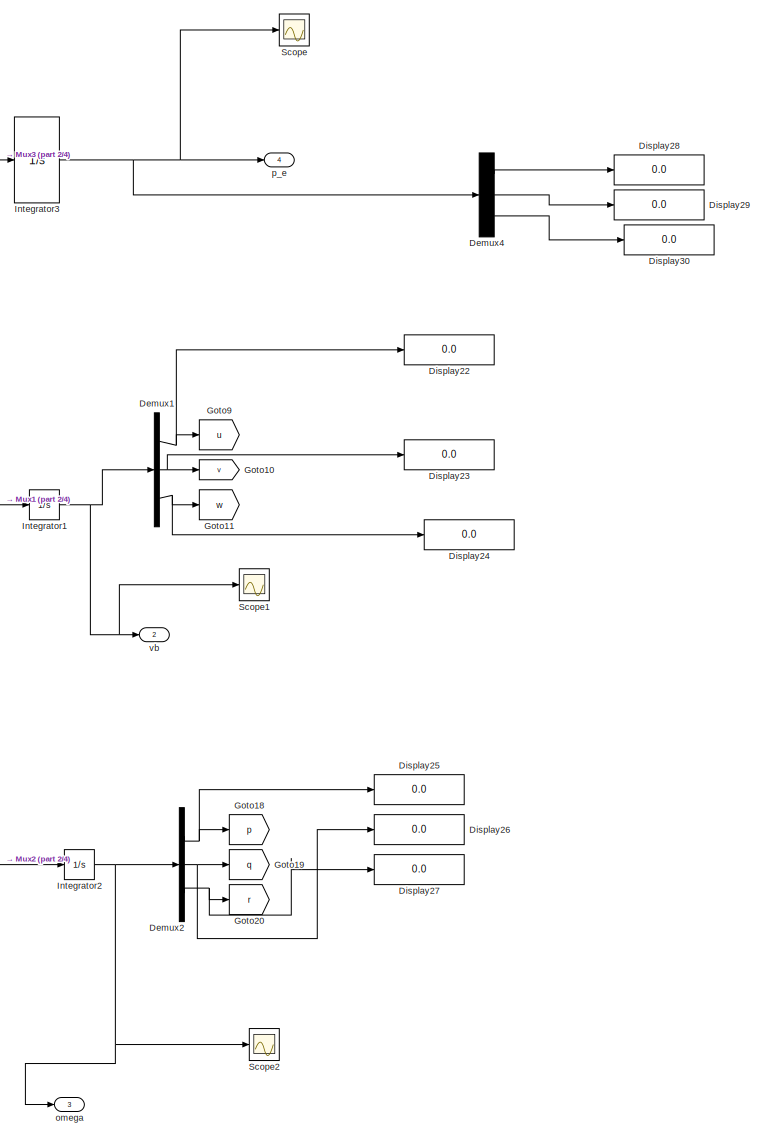
[diagram: root canvas - part 1/4, right side, full height]
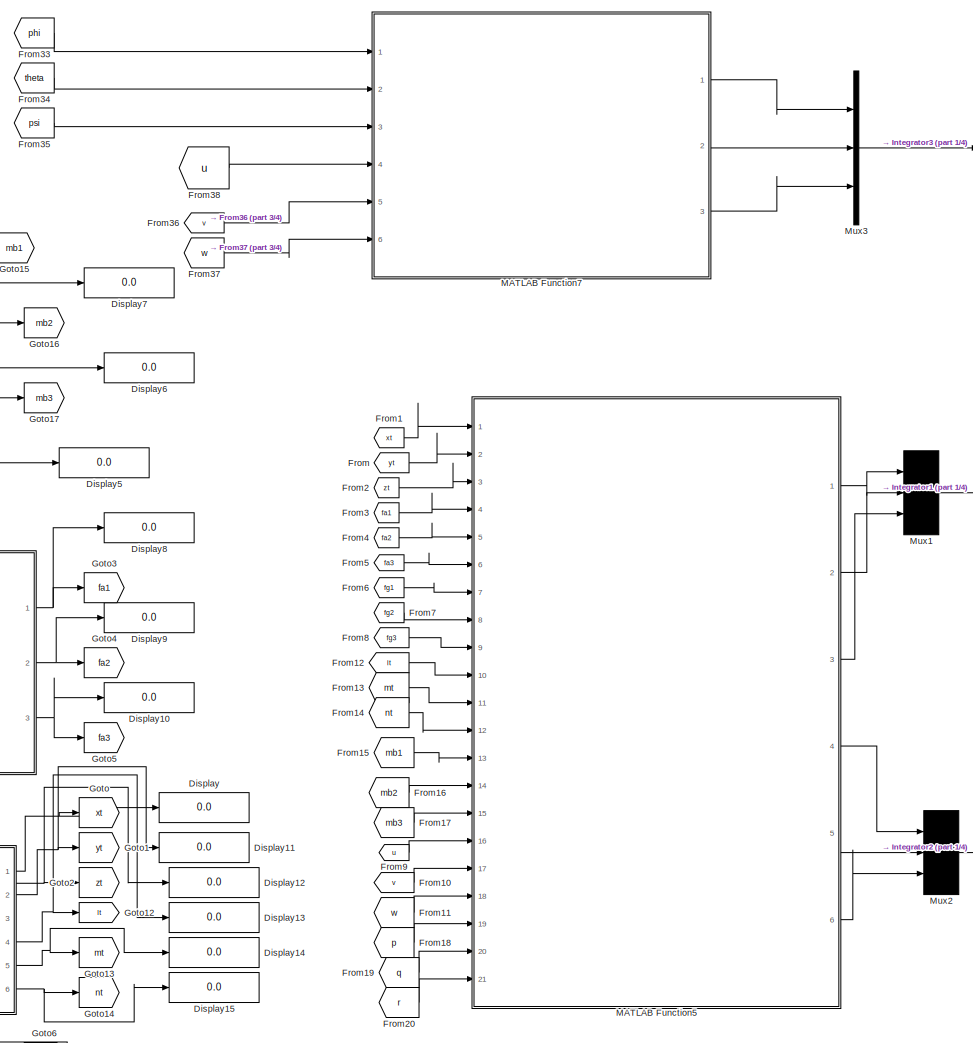
[diagram: root canvas - part 2/4, center side, full height]
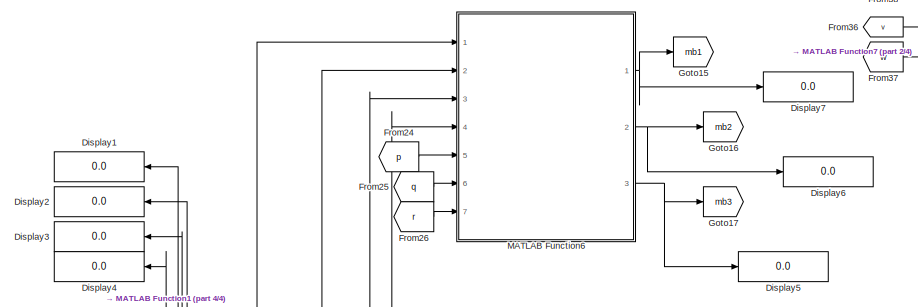
[diagram: root canvas - part 3/4, top left region]
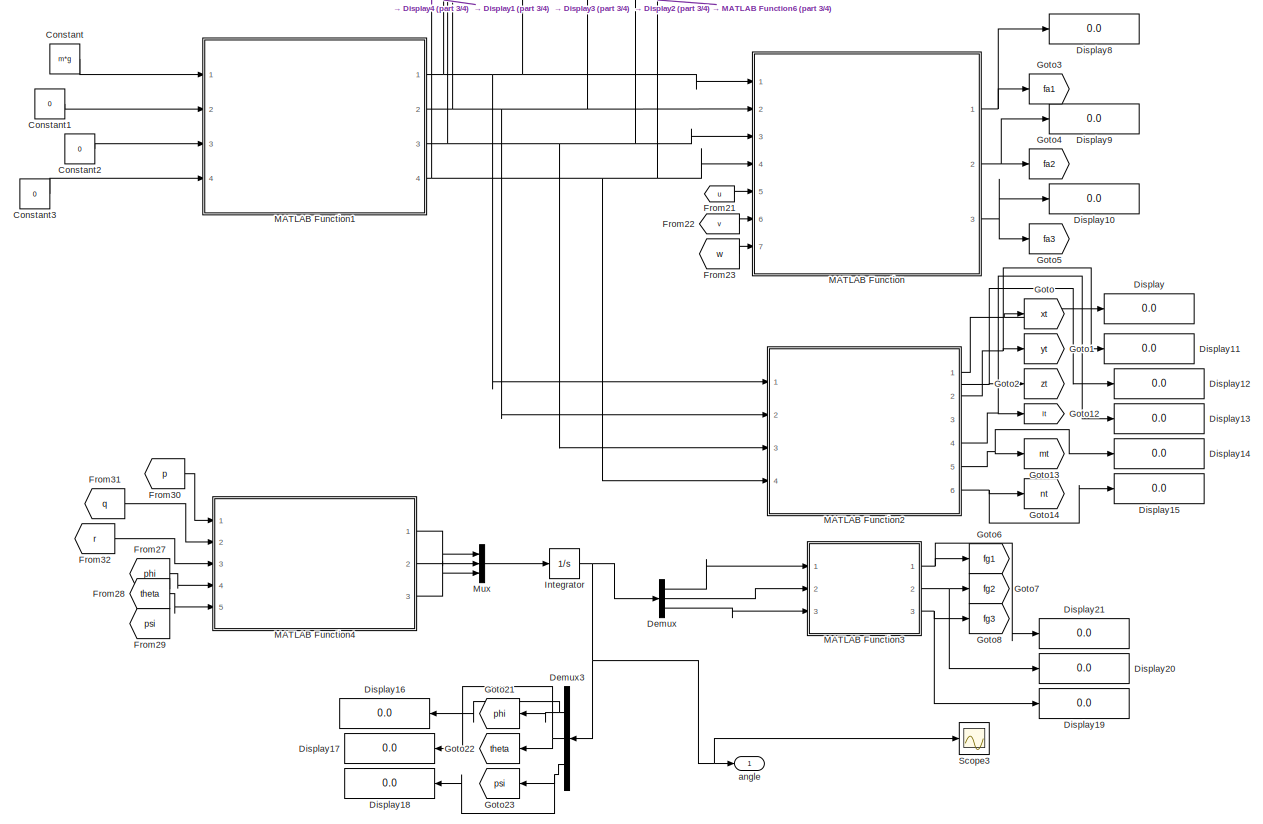
[diagram: root canvas - part 4/4, bottom left region]
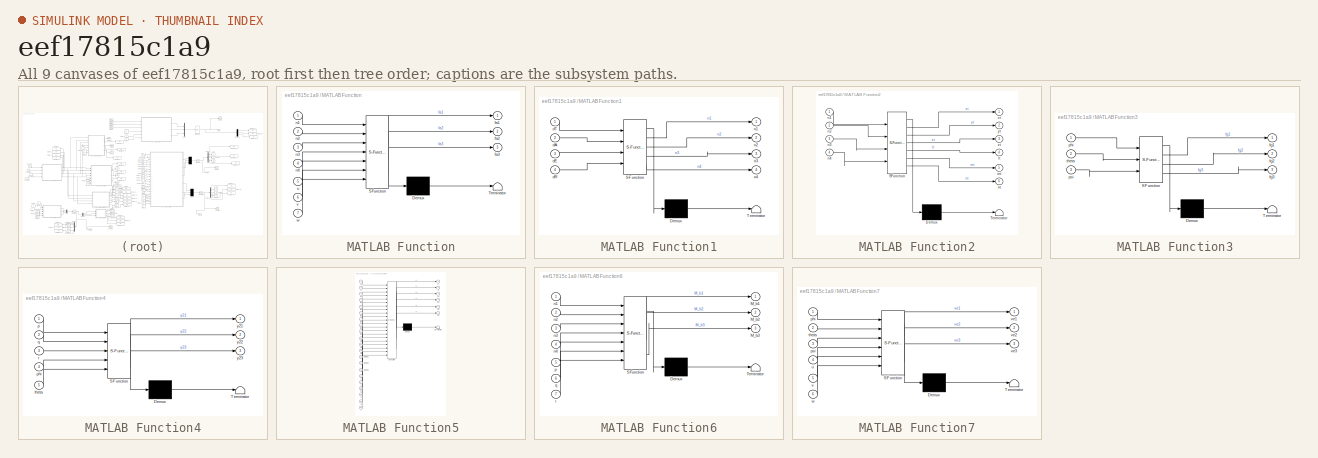
[diagram: thumbnail index - all 9 canvases of the model, root first then tree order]
MODEL slx_eef17815c1a9
KIND model
CONFIG AbsTol = auto
CONFIG EnableMultiTasking = off
CONFIG FixedStep = auto
CONFIG MaxStep = auto
CONFIG MinStep = auto
CONFIG RelTol = 1e-3
CONFIG SampleTimeConstraint = Unconstrained
CONFIG SolverName = VariableStepAuto
CONFIG StartTime = 0.0
CONFIG StopTime = 10.0
BLOCK [Constant] Constant
  Value = m*g
BLOCK [Constant] Constant1
  Value = 0
BLOCK [Constant] Constant2
  Value = 0
BLOCK [Constant] Constant3
  Value = 0
BLOCK [Demux] Demux
  Outputs = 3
  Ports = [1, 3]
BLOCK [Demux] Demux1
  Outputs = 3
  Ports = [1, 3]
BLOCK [Demux] Demux2
  Outputs = 3
  Ports = [1, 3]
BLOCK [Demux] Demux3
  Outputs = 3
  Ports = [1, 3]
BLOCK [Demux] Demux4
  Outputs = 3
  Ports = [1, 3]
BLOCK [Display] Display
  Decimation = 1
  Ports = [1]
BLOCK [Display] Display1
  Decimation = 1
  Ports = [1]
BLOCK [Display] Display10
  Decimation = 1
  Ports = [1]
BLOCK [Display] Display11
  Decimation = 1
  Ports = [1]
BLOCK [Display] Display12
  Decimation = 1
  Ports = [1]
BLOCK [Display] Display13
  Decimation = 1
  Ports = [1]
BLOCK [Display] Display14
  Decimation = 1
  Ports = [1]
BLOCK [Display] Display15
  Decimation = 1
  Ports = [1]
BLOCK [Display] Display16
  Decimation = 1
  Ports = [1]
BLOCK [Display] Display17
  Decimation = 1
  Ports = [1]
BLOCK [Display] Display18
  Decimation = 1
  Ports = [1]
BLOCK [Display] Display19
  Decimation = 1
  Ports = [1]
BLOCK [Display] Display2
  Decimation = 1
  Ports = [1]
BLOCK [Display] Display20
  Decimation = 1
  Ports = [1]
BLOCK [Display] Display21
  Decimation = 1
  Ports = [1]
BLOCK [Display] Display22
  Decimation = 1
  Ports = [1]
BLOCK [Display] Display23
  Decimation = 1
  Ports = [1]
BLOCK [Display] Display24
  Decimation = 1
  Ports = [1]
BLOCK [Display] Display25
  Decimation = 1
  Ports = [1]
BLOCK [Display] Display26
  Decimation = 1
  Ports = [1]
BLOCK [Display] Display27
  Decimation = 1
  Ports = [1]
BLOCK [Display] Display28
  Decimation = 1
  Ports = [1]
BLOCK [Display] Display29
  Decimation = 1
  Ports = [1]
BLOCK [Display] Display3
  Decimation = 1
  Ports = [1]
BLOCK [Display] Display30
  Decimation = 1
  Ports = [1]
BLOCK [Display] Display4
  Decimation = 1
  Ports = [1]
BLOCK [Display] Display5
  Decimation = 1
  Ports = [1]
BLOCK [Display] Display6
  Decimation = 1
  Ports = [1]
BLOCK [Display] Display7
  Decimation = 1
  Ports = [1]
BLOCK [Display] Display8
  Decimation = 1
  Ports = [1]
BLOCK [Display] Display9
  Decimation = 1
  Ports = [1]
BLOCK [From] From
  GotoTag = yt
BLOCK [From] From1
  GotoTag = xt
BLOCK [From] From10
  GotoTag = v
BLOCK [From] From11
  GotoTag = w
BLOCK [From] From12
  GotoTag = lt
BLOCK [From] From13
  GotoTag = mt
BLOCK [From] From14
  GotoTag = nt
BLOCK [From] From15
  GotoTag = mb1
BLOCK [From] From16
  GotoTag = mb2
BLOCK [From] From17
  GotoTag = mb3
BLOCK [From] From18
  GotoTag = p
BLOCK [From] From19
  GotoTag = q
BLOCK [From] From2
  GotoTag = zt
BLOCK [From] From20
  GotoTag = r
BLOCK [From] From21
  GotoTag = u
BLOCK [From] From22
  GotoTag = v
BLOCK [From] From23
  GotoTag = w
BLOCK [From] From24
  GotoTag = p
BLOCK [From] From25
  GotoTag = q
BLOCK [From] From26
  GotoTag = r
BLOCK [From] From27
  GotoTag = phi
BLOCK [From] From28
  GotoTag = theta
BLOCK [From] From29
  GotoTag = psi
BLOCK [From] From3
  GotoTag = fa1
BLOCK [From] From30
  GotoTag = p
BLOCK [From] From31
  GotoTag = q
BLOCK [From] From32
  GotoTag = r
BLOCK [From] From33
  GotoTag = phi
BLOCK [From] From34
  GotoTag = theta
BLOCK [From] From35
  GotoTag = psi
BLOCK [From] From36
  GotoTag = v
BLOCK [From] From37
  GotoTag = w
BLOCK [From] From38
  GotoTag = u
BLOCK [From] From4
  GotoTag = fa2
BLOCK [From] From5
  GotoTag = fa3
BLOCK [From] From6
  GotoTag = fg1
BLOCK [From] From7
  GotoTag = fg2
BLOCK [From] From8
  GotoTag = fg3
BLOCK [From] From9
  GotoTag = u
BLOCK [Goto] Goto
  GotoTag = xt
BLOCK [Goto] Goto1
  GotoTag = yt
BLOCK [Goto] Goto10
  GotoTag = v
BLOCK [Goto] Goto11
  GotoTag = w
BLOCK [Goto] Goto12
  GotoTag = lt
BLOCK [Goto] Goto13
  GotoTag = mt
BLOCK [Goto] Goto14
  GotoTag = nt
BLOCK [Goto] Goto15
  GotoTag = mb1
BLOCK [Goto] Goto16
  GotoTag = mb2
BLOCK [Goto] Goto17
  GotoTag = mb3
BLOCK [Goto] Goto18
  GotoTag = p
BLOCK [Goto] Goto19
  GotoTag = q
BLOCK [Goto] Goto2
  GotoTag = zt
BLOCK [Goto] Goto20
  GotoTag = r
BLOCK [Goto] Goto21
  GotoTag = phi
BLOCK [Goto] Goto22
  GotoTag = theta
BLOCK [Goto] Goto23
  GotoTag = psi
BLOCK [Goto] Goto3
  GotoTag = fa1
BLOCK [Goto] Goto4
  GotoTag = fa2
BLOCK [Goto] Goto5
  GotoTag = fa3
BLOCK [Goto] Goto6
  GotoTag = fg1
BLOCK [Goto] Goto7
  GotoTag = fg2
BLOCK [Goto] Goto8
  GotoTag = fg3
BLOCK [Goto] Goto9
  GotoTag = u
BLOCK [Integrator] Integrator
  InitialCondition = [0;0;0]
  Ports = [1, 1]
BLOCK [Integrator] Integrator1
  InitialCondition = [0;0;0]
  Ports = [1, 1]
BLOCK [Integrator] Integrator2
  InitialCondition = [0;0;0]
  Ports = [1, 1]
BLOCK [Integrator] Integrator3
  InitialCondition = [0;0;0]
  Ports = [1, 1]
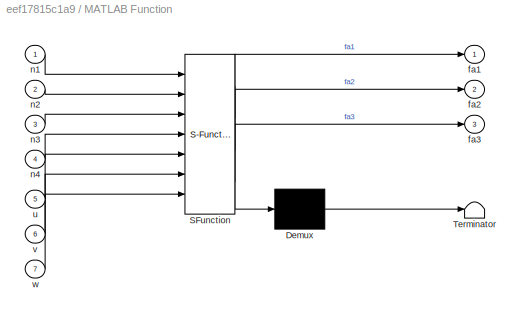
BLOCK [SubSystem] MATLAB Function
  AttributesFormatString = %<Tag>
  ErrorFcn = Stateflow.Translate.translate
  PermitHierarchicalResolution = ExplicitOnly
  Ports = [7, 3]
  RequestExecContextInheritance = off
  SFBlockType = MATLAB Function
  Tag = Aerodynamic Forces and Moments
  TreatAsAtomicUnit = on
BLOCK [Demux] MATLAB Function/ Demux 
  Outputs = 1
  Ports = [1, 1]
BLOCK [S-Function] MATLAB Function/ SFunction 
  EnableBusSupport = on
  FunctionName = sf_sfun
  PortCounts = [7 4]
  Ports = [7, 4]
  SFcnIsStateOwnerBlock = off
  SFunctionDeploymentMode = off
  Tag = Stateflow S-Function 9
BLOCK [Terminator] MATLAB Function/ Terminator 
BLOCK [Outport] MATLAB Function/fa1
BLOCK [Outport] MATLAB Function/fa2
  Port = 2
BLOCK [Outport] MATLAB Function/fa3
  Port = 3
BLOCK [Inport] MATLAB Function/n1
BLOCK [Inport] MATLAB Function/n2
  Port = 2
BLOCK [Inport] MATLAB Function/n3
  Port = 3
BLOCK [Inport] MATLAB Function/n4
  Port = 4
BLOCK [Inport] MATLAB Function/u
  Port = 5
BLOCK [Inport] MATLAB Function/v
  Port = 6
BLOCK [Inport] MATLAB Function/w
  Port = 7
BLOCK [SubSystem] MATLAB Function1
  AttributesFormatString = %<Tag>
  ErrorFcn = Stateflow.Translate.translate
  PermitHierarchicalResolution = ExplicitOnly
  Ports = [4, 4]
  RequestExecContextInheritance = off
  SFBlockType = MATLAB Function
  Tag = Mixer
  TreatAsAtomicUnit = on
BLOCK [Demux] MATLAB Function1/ Demux 
  Outputs = 1
  Ports = [1, 1]
BLOCK [S-Function] MATLAB Function1/ SFunction 
  EnableBusSupport = on
  FunctionName = sf_sfun
  PortCounts = [4 5]
  Ports = [4, 5]
  SFcnIsStateOwnerBlock = off
  SFunctionDeploymentMode = off
  Tag = Stateflow S-Function 10
BLOCK [Terminator] MATLAB Function1/ Terminator 
BLOCK [Inport] MATLAB Function1/dA
  Port = 2
BLOCK [Inport] MATLAB Function1/dE
  Port = 3
BLOCK [Inport] MATLAB Function1/dR
  Port = 4
BLOCK [Inport] MATLAB Function1/dT
BLOCK [Outport] MATLAB Function1/n1
BLOCK [Outport] MATLAB Function1/n2
  Port = 2
BLOCK [Outport] MATLAB Function1/n3
  Port = 3
BLOCK [Outport] MATLAB Function1/n4
  Port = 4
BLOCK [SubSystem] MATLAB Function2
  AttributesFormatString = %<Tag>
  ErrorFcn = Stateflow.Translate.translate
  PermitHierarchicalResolution = ExplicitOnly
  Ports = [4, 6]
  RequestExecContextInheritance = off
  SFBlockType = MATLAB Function
  Tag = Propulsive Motor Forces and Moments
  TreatAsAtomicUnit = on
BLOCK [Demux] MATLAB Function2/ Demux 
  Outputs = 1
  Ports = [1, 1]
BLOCK [S-Function] MATLAB Function2/ SFunction 
  EnableBusSupport = on
  FunctionName = sf_sfun
  PortCounts = [4 7]
  Ports = [4, 7]
  SFcnIsStateOwnerBlock = off
  SFunctionDeploymentMode = off
  Tag = Stateflow S-Function 11
BLOCK [Terminator] MATLAB Function2/ Terminator 
BLOCK [Outport] MATLAB Function2/lt
  Port = 4
BLOCK [Outport] MATLAB Function2/mt
  Port = 5
BLOCK [Inport] MATLAB Function2/n1
BLOCK [Inport] MATLAB Function2/n2
  Port = 2
BLOCK [Inport] MATLAB Function2/n3
  Port = 3
BLOCK [Inport] MATLAB Function2/n4
  Port = 4
BLOCK [Outport] MATLAB Function2/nt
  Port = 6
BLOCK [Outport] MATLAB Function2/xt
BLOCK [Outport] MATLAB Function2/yt
  Port = 2
BLOCK [Outport] MATLAB Function2/zt
  Port = 3
BLOCK [SubSystem] MATLAB Function3
  AttributesFormatString = %<Tag>
  ErrorFcn = Stateflow.Translate.translate
  PermitHierarchicalResolution = ExplicitOnly
  Ports = [3, 3]
  RequestExecContextInheritance = off
  SFBlockType = MATLAB Function
  Tag = Model Gravity
  TreatAsAtomicUnit = on
BLOCK [Demux] MATLAB Function3/ Demux 
  Outputs = 1
  Ports = [1, 1]
BLOCK [S-Function] MATLAB Function3/ SFunction 
  EnableBusSupport = on
  FunctionName = sf_sfun
  PortCounts = [3 4]
  Ports = [3, 4]
  SFcnIsStateOwnerBlock = off
  SFunctionDeploymentMode = off
  Tag = Stateflow S-Function 12
BLOCK [Terminator] MATLAB Function3/ Terminator 
BLOCK [Outport] MATLAB Function3/fg1
BLOCK [Outport] MATLAB Function3/fg2
  Port = 2
BLOCK [Outport] MATLAB Function3/fg3
  Port = 3
BLOCK [Inport] MATLAB Function3/phi
BLOCK [Inport] MATLAB Function3/psi
  Port = 3
BLOCK [Inport] MATLAB Function3/theta
  Port = 2
BLOCK [SubSystem] MATLAB Function4
  AttributesFormatString = %<Tag>
  ErrorFcn = Stateflow.Translate.translate
  PermitHierarchicalResolution = ExplicitOnly
  Ports = [5, 3]
  RequestExecContextInheritance = off
  SFBlockType = MATLAB Function
  Tag = Rotational Kinmeatics
  TreatAsAtomicUnit = on
BLOCK [Demux] MATLAB Function4/ Demux 
  Outputs = 1
  Ports = [1, 1]
BLOCK [S-Function] MATLAB Function4/ SFunction 
  EnableBusSupport = on
  FunctionName = sf_sfun
  PortCounts = [5 4]
  Ports = [5, 4]
  SFcnIsStateOwnerBlock = off
  SFunctionDeploymentMode = off
  Tag = Stateflow S-Function 13
BLOCK [Terminator] MATLAB Function4/ Terminator 
BLOCK [Inport] MATLAB Function4/p
BLOCK [Inport] MATLAB Function4/phi
  Port = 4
BLOCK [Inport] MATLAB Function4/q
  Port = 2
BLOCK [Inport] MATLAB Function4/r
  Port = 3
BLOCK [Inport] MATLAB Function4/theta
  Port = 5
BLOCK [Outport] MATLAB Function4/y21
BLOCK [Outport] MATLAB Function4/y22
  Port = 2
BLOCK [Outport] MATLAB Function4/y23
  Port = 3
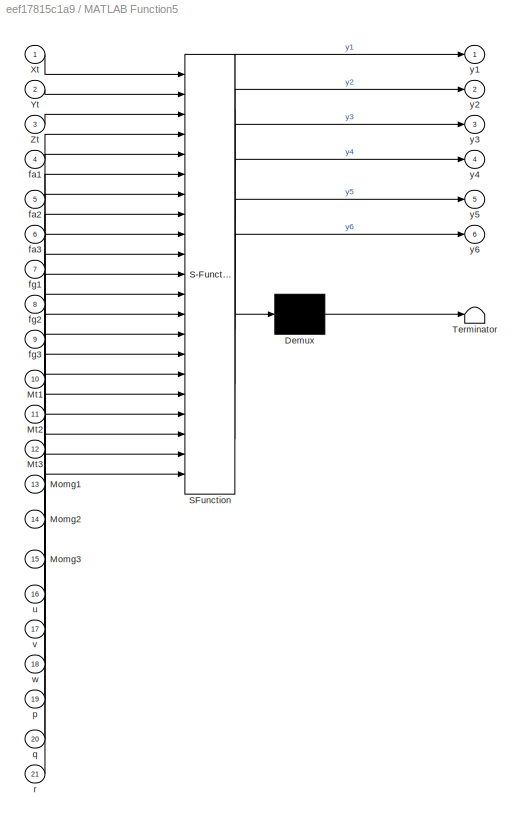
BLOCK [SubSystem] MATLAB Function5
  ErrorFcn = Stateflow.Translate.translate
  PermitHierarchicalResolution = ExplicitOnly
  Ports = [21, 6]
  RequestExecContextInheritance = off
  SFBlockType = MATLAB Function
  TreatAsAtomicUnit = on
BLOCK [Demux] MATLAB Function5/ Demux 
  Outputs = 1
  Ports = [1, 1]
BLOCK [S-Function] MATLAB Function5/ SFunction 
  EnableBusSupport = on
  FunctionName = sf_sfun
  PortCounts = [21 7]
  Ports = [21, 7]
  SFcnIsStateOwnerBlock = off
  SFunctionDeploymentMode = off
  Tag = Stateflow S-Function 14
BLOCK [Terminator] MATLAB Function5/ Terminator 
BLOCK [Inport] MATLAB Function5/Momg1
  Port = 13
BLOCK [Inport] MATLAB Function5/Momg2
  Port = 14
BLOCK [Inport] MATLAB Function5/Momg3
  Port = 15
BLOCK [Inport] MATLAB Function5/Mt1
  Port = 10
BLOCK [Inport] MATLAB Function5/Mt2
  Port = 11
BLOCK [Inport] MATLAB Function5/Mt3
  Port = 12
BLOCK [Inport] MATLAB Function5/Xt
BLOCK [Inport] MATLAB Function5/Yt
  Port = 2
BLOCK [Inport] MATLAB Function5/Zt
  Port = 3
BLOCK [Inport] MATLAB Function5/fa1
  Port = 4
BLOCK [Inport] MATLAB Function5/fa2
  Port = 5
BLOCK [Inport] MATLAB Function5/fa3
  Port = 6
BLOCK [Inport] MATLAB Function5/fg1
  Port = 7
BLOCK [Inport] MATLAB Function5/fg2
  Port = 8
BLOCK [Inport] MATLAB Function5/fg3
  Port = 9
BLOCK [Inport] MATLAB Function5/p
  Port = 19
BLOCK [Inport] MATLAB Function5/q
  Port = 20
BLOCK [Inport] MATLAB Function5/r
  Port = 21
BLOCK [Inport] MATLAB Function5/u
  Port = 16
BLOCK [Inport] MATLAB Function5/v
  Port = 17
BLOCK [Inport] MATLAB Function5/w
  Port = 18
BLOCK [Outport] MATLAB Function5/y1
BLOCK [Outport] MATLAB Function5/y2
  Port = 2
BLOCK [Outport] MATLAB Function5/y3
  Port = 3
BLOCK [Outport] MATLAB Function5/y4
  Port = 4
BLOCK [Outport] MATLAB Function5/y5
  Port = 5
BLOCK [Outport] MATLAB Function5/y6
  Port = 6
BLOCK [SubSystem] MATLAB Function6
  AttributesFormatString = %<Tag>
  ErrorFcn = Stateflow.Translate.translate
  PermitHierarchicalResolution = ExplicitOnly
  Ports = [7, 3]
  RequestExecContextInheritance = off
  SFBlockType = MATLAB Function
  Tag = Gyroscopic Forces and Moments
  TreatAsAtomicUnit = on
BLOCK [Demux] MATLAB Function6/ Demux 
  Outputs = 1
  Ports = [1, 1]
BLOCK [S-Function] MATLAB Function6/ SFunction 
  EnableBusSupport = on
  FunctionName = sf_sfun
  PortCounts = [7 4]
  Ports = [7, 4]
  SFcnIsStateOwnerBlock = off
  SFunctionDeploymentMode = off
  Tag = Stateflow S-Function 15
BLOCK [Terminator] MATLAB Function6/ Terminator 
BLOCK [Outport] MATLAB Function6/M_b1
BLOCK [Outport] MATLAB Function6/M_b2
  Port = 2
BLOCK [Outport] MATLAB Function6/M_b3
  Port = 3
BLOCK [Inport] MATLAB Function6/n1
BLOCK [Inport] MATLAB Function6/n2
  Port = 2
BLOCK [Inport] MATLAB Function6/n3
  Port = 3
BLOCK [Inport] MATLAB Function6/n4
  Port = 4
BLOCK [Inport] MATLAB Function6/p
  Port = 5
BLOCK [Inport] MATLAB Function6/q
  Port = 6
BLOCK [Inport] MATLAB Function6/r
  Port = 7
BLOCK [SubSystem] MATLAB Function7
  ErrorFcn = Stateflow.Translate.translate
  PermitHierarchicalResolution = ExplicitOnly
  Ports = [6, 3]
  RequestExecContextInheritance = off
  SFBlockType = MATLAB Function
  TreatAsAtomicUnit = on
BLOCK [Demux] MATLAB Function7/ Demux 
  Outputs = 1
  Ports = [1, 1]
BLOCK [S-Function] MATLAB Function7/ SFunction 
  EnableBusSupport = on
  FunctionName = sf_sfun
  PortCounts = [6 4]
  Ports = [6, 4]
  SFcnIsStateOwnerBlock = off
  SFunctionDeploymentMode = off
  Tag = Stateflow S-Function 16
BLOCK [Terminator] MATLAB Function7/ Terminator 
BLOCK [Inport] MATLAB Function7/phi
BLOCK [Inport] MATLAB Function7/psi
  Port = 3
BLOCK [Inport] MATLAB Function7/theta
  Port = 2
BLOCK [Inport] MATLAB Function7/u
  Port = 4
BLOCK [Inport] MATLAB Function7/v
  Port = 5
BLOCK [Outport] MATLAB Function7/ve1
BLOCK [Outport] MATLAB Function7/ve2
  Port = 2
BLOCK [Outport] MATLAB Function7/ve3
  Port = 3
BLOCK [Inport] MATLAB Function7/w
  Port = 6
BLOCK [Mux] Mux
  DisplayOption = bar
  Inputs = 3
  Ports = [3, 1]
BLOCK [Mux] Mux1
  DisplayOption = bar
  Inputs = 3
  Ports = [3, 1]
BLOCK [Mux] Mux2
  DisplayOption = bar
  Inputs = 3
  Ports = [3, 1]
BLOCK [Mux] Mux3
  DisplayOption = bar
  Inputs = 3
  Ports = [3, 1]
BLOCK [Scope] Scope
  Floating = off
  NumInputPorts = 1
  Ports = [1]
  ScopeSpecificationString = Simulink.scopes.TimeScopeBlockCfg('CurrentConfiguration', extmgr.ConfigurationSet(extmgr.Configuration('Core','General UI',true),extmgr.Configuration('Core','Source UI',true),extmgr.Configuration('Sources','WiredSimulink',true),extmgr.Configuration('Visuals','Time Domain',true,'SerializedDisplays',{struct('MinYLimReal','-61.27864','MaxYLimReal','551.50771','YLabelReal','','MinYLimMag','0.00000','M...<+1375ch>
BLOCK [Scope] Scope1
  Floating = off
  NumInputPorts = 1
  Ports = [1]
  ScopeSpecificationString = Simulink.scopes.TimeScopeBlockCfg('CurrentConfiguration', extmgr.ConfigurationSet(extmgr.Configuration('Core','General UI',true),extmgr.Configuration('Core','Source UI',true),extmgr.Configuration('Sources','WiredSimulink',true,'DataLoggingVariableName','ScopeData1'),extmgr.Configuration('Visuals','Time Domain',true,'SerializedDisplays',{struct('MinYLimReal','-12.44456','MaxYLimReal','109.92288','Y...<+1414ch>
BLOCK [Scope] Scope2
  Floating = off
  NumInputPorts = 1
  Ports = [1]
  ScopeSpecificationString = Simulink.scopes.TimeScopeBlockCfg('CurrentConfiguration', extmgr.ConfigurationSet(extmgr.Configuration('Core','General UI',true),extmgr.Configuration('Core','Source UI',true),extmgr.Configuration('Sources','WiredSimulink',true,'DataLoggingVariableName','ScopeData2'),extmgr.Configuration('Visuals','Time Domain',true,'SerializedDisplays',{struct('MinYLimReal','-819653.09027','MaxYLimReal','7239922.8...<+1442ch>
BLOCK [Scope] Scope3
  Floating = off
  NumInputPorts = 1
  Ports = [1]
  ScopeSpecificationString = Simulink.scopes.TimeScopeBlockCfg('CurrentConfiguration', extmgr.ConfigurationSet(extmgr.Configuration('Core','General UI',true),extmgr.Configuration('Core','Source UI',true),extmgr.Configuration('Sources','WiredSimulink',true,'DataLoggingVariableName','ScopeData3'),extmgr.Configuration('Visuals','Time Domain',true,'SerializedDisplays',{struct('MinYLimReal','-0.07132','MaxYLimReal','0.00792','YLab...<+1482ch>
BLOCK [Outport] angle
BLOCK [Outport] omega
  Port = 3
BLOCK [Outport] p_e
  Port = 4
BLOCK [Outport] vb
  Port = 2
LINE Constant1:1 -> MATLAB Function1:2
LINE Constant2:1 -> MATLAB Function1:3
LINE Constant3:1 -> MATLAB Function1:4
LINE Constant:1 -> MATLAB Function1:1
NET Demux1:1 -> Display22:1, Goto9:1
NET Demux1:2 -> Display23:1, Goto10:1
NET Demux1:3 -> Display24:1, Goto11:1
NET Demux2:1 -> Display25:1, Goto18:1
NET Demux2:2 -> Display26:1, Goto19:1
NET Demux2:3 -> Display27:1, Goto20:1
NET Demux3:1 -> Display16:1, Goto21:1
NET Demux3:2 -> Display17:1, Goto22:1
NET Demux3:3 -> Display18:1, Goto23:1
LINE Demux4:1 -> Display28:1
LINE Demux4:2 -> Display29:1
LINE Demux4:3 -> Display30:1
LINE Demux:1 -> MATLAB Function3:1
LINE Demux:2 -> MATLAB Function3:2
LINE Demux:3 -> MATLAB Function3:3
LINE From10:1 -> MATLAB Function5:17
LINE From11:1 -> MATLAB Function5:18
LINE From12:1 -> MATLAB Function5:10
LINE From13:1 -> MATLAB Function5:11
LINE From14:1 -> MATLAB Function5:12
LINE From15:1 -> MATLAB Function5:13
LINE From16:1 -> MATLAB Function5:14
LINE From17:1 -> MATLAB Function5:15
LINE From18:1 -> MATLAB Function5:19
LINE From19:1 -> MATLAB Function5:20
LINE From1:1 -> MATLAB Function5:1
LINE From20:1 -> MATLAB Function5:21
LINE From21:1 -> MATLAB Function:5
LINE From22:1 -> MATLAB Function:6
LINE From23:1 -> MATLAB Function:7
LINE From24:1 -> MATLAB Function6:5
LINE From25:1 -> MATLAB Function6:6
LINE From26:1 -> MATLAB Function6:7
LINE From27:1 -> MATLAB Function4:4
LINE From28:1 -> MATLAB Function4:5
LINE From2:1 -> MATLAB Function5:3
LINE From30:1 -> MATLAB Function4:1
LINE From31:1 -> MATLAB Function4:2
LINE From32:1 -> MATLAB Function4:3
LINE From33:1 -> MATLAB Function7:1
LINE From34:1 -> MATLAB Function7:2
LINE From35:1 -> MATLAB Function7:3
LINE From36:1 -> MATLAB Function7:5
LINE From37:1 -> MATLAB Function7:6
LINE From38:1 -> MATLAB Function7:4
LINE From3:1 -> MATLAB Function5:4
LINE From4:1 -> MATLAB Function5:5
LINE From5:1 -> MATLAB Function5:6
LINE From6:1 -> MATLAB Function5:7
LINE From7:1 -> MATLAB Function5:8
LINE From8:1 -> MATLAB Function5:9
LINE From9:1 -> MATLAB Function5:16
LINE From:1 -> MATLAB Function5:2
NET Integrator1:1 -> Demux1:1, Scope1:1, vb:1
NET Integrator2:1 -> Demux2:1, Scope2:1, omega:1
NET Integrator3:1 -> Demux4:1, Scope:1, p_e:1
NET Integrator:1 -> Demux3:1, Demux:1, Scope3:1, angle:1
NET MATLAB Function1:1 -> Display1:1, MATLAB Function2:1, MATLAB Function6:1, MATLAB Function:1
NET MATLAB Function1:2 -> Display2:1, MATLAB Function2:2, MATLAB Function6:2, MATLAB Function:2
NET MATLAB Function1:3 -> Display3:1, MATLAB Function2:3, MATLAB Function6:3, MATLAB Function:3
NET MATLAB Function1:4 -> Display4:1, MATLAB Function2:4, MATLAB Function6:4, MATLAB Function:4
NET MATLAB Function2:1 -> Display:1, Goto:1
NET MATLAB Function2:2 -> Display11:1, Goto1:1
NET MATLAB Function2:3 -> Display12:1, Goto2:1
NET MATLAB Function2:4 -> Display13:1, Goto12:1
NET MATLAB Function2:5 -> Display14:1, Goto13:1
NET MATLAB Function2:6 -> Display15:1, Goto14:1
NET MATLAB Function3:1 -> Display21:1, Goto6:1
NET MATLAB Function3:2 -> Display20:1, Goto7:1
NET MATLAB Function3:3 -> Display19:1, Goto8:1
LINE MATLAB Function4:1 -> Mux:1
LINE MATLAB Function4:2 -> Mux:2
LINE MATLAB Function4:3 -> Mux:3
LINE MATLAB Function5:1 -> Mux1:1
LINE MATLAB Function5:2 -> Mux1:2
LINE MATLAB Function5:3 -> Mux1:3
LINE MATLAB Function5:4 -> Mux2:1
LINE MATLAB Function5:5 -> Mux2:2
LINE MATLAB Function5:6 -> Mux2:3
NET MATLAB Function6:1 -> Display7:1, Goto15:1
NET MATLAB Function6:2 -> Display6:1, Goto16:1
NET MATLAB Function6:3 -> Display5:1, Goto17:1
LINE MATLAB Function7:1 -> Mux3:1
LINE MATLAB Function7:2 -> Mux3:2
LINE MATLAB Function7:3 -> Mux3:3
NET MATLAB Function:1 -> Display8:1, Goto3:1
NET MATLAB Function:2 -> Display9:1, Goto4:1
NET MATLAB Function:3 -> Display10:1, Goto5:1
LINE Mux1:1 -> Integrator1:1
LINE Mux2:1 -> Integrator2:1
LINE Mux3:1 -> Integrator3:1
LINE Mux:1 -> Integrator:1
note: NET lines group one-source signal fan-out (src -> all destinations, sorted); 1:1 wires keep LINE
CHART MATLAB Function6 states=1 transitions=1
  STATE_LABEL 'eML_blk_kernel()'
  STATE_LABEL 'SCRIPT:\nfunction [M_b1,M_b2,M_b3] = fcn12(n1,n2,n3,n4,p,q,r)\nJp=1.0207e-05;\nhb = Jp*2*pi*(n1-n2+n3-n4);\nHb = [0;0;hb];\nomega = [p;q;r];\nMb = cross(Hb,omega);\nM_b1 = Mb(1);\nM_b2 = Mb(2);\nM_b3 = Mb(3);\n'
CHART MATLAB Function7 states=1 transitions=1
  STATE_LABEL 'eML_blk_kernel()'
  STATE_LABEL 'SCRIPT:\nfunction [ve1,ve2,ve3] = fcn10(phi,theta,psi,u,v,w)\ncpsi = cos(psi);\nspsi = sin(psi);\nR_psi = [ cpsi spsi 0    ;...\n          -spsi cpsi 0  ;...\n          0 0 1  ];\ncphi = cos(phi);\nsphi = sin(phi);\nR_phi = [ 1 0 0    ;...\n          0 cphi sphi  ;...\n          0 -sphi cphi  ];\n\nctheta = cos(theta);\nstheta = sin(theta);\nR_theta = [ ctheta 0 -stheta       ;....\n            0 1  0 ;....\n     ...<+130ch>'
CHART MATLAB Function states=1 transitions=1
  STATE_LABEL 'eML_blk_kernel()'
  STATE_LABEL 'SCRIPT:\nfunction [fa1,fa2,fa3] = fcn11(n1,n2,n3,n4,u,v,w)\nv_b = [u;v;w];\na = 1.948E-6;\nkc = 0.22;\nK_c = [kc 0 0;\n    0 kc 0;\n    0 0 0];\nF_b = -a*(n1^2+n2^2+n3^2+n4^2)*K_c*v_b;\nfa1 = F_b(1);\nfa2 = F_b(2);\nfa3 = F_b(3);\n'
CHART MATLAB Function1 states=1 transitions=1
  STATE_LABEL 'eML_blk_kernel()'
  STATE_LABEL 'SCRIPT:\nfunction [n1,n2,n3,n4] = fcn9(dT,dA,dE,dR)\na = 1.948E-6;\nb = 9.277E-8;\nc = 9.277E-8;\nd=1.017E-7;\ninput = [dT;dA;dE;dR];\ncoeff = [a 0 0 0;\n    0 b 0 0;\n    0 0 c 0;\n    0 0 0 d;];\nones_1 = [1 1 1 1;\n    1 -1 -1 1;\n    1 1 -1 -1;\n    -1 1 -1 1;];\ncoeff1 = coeff*ones_1;\nv_final1 = inv(coeff1)*input;\nv_final = abs(v_final1);\nn1 = sqrt(v_final(1))\nn2 = sqrt(v_final(2));\nn3 = sqrt(v_final(3));\nn...<+22ch>'
CHART MATLAB Function2 states=1 transitions=1
  STATE_LABEL 'eML_blk_kernel()'
  STATE_LABEL 'SCRIPT:\nfunction [xt,yt,zt,lt,mt,nt] = fcn8(n1,n2,n3,n4)\na = 1.948E-6;\nb = 9.277E-8;\nc = 9.277E-8;\nd=1.017E-7;\nxt = 0;\nyt = 0;\nzt = -a*(n1^2+n2^2+n3^2+n4^2);\nlt = b*(n1^2-n2^2-n3^2+n4^2);\nmt = c*(n1^2+n2^2-n3^2-n4^2);\nnt = d*(-n1^2+n2^2-n2^3+n4^2);\n'
CHART MATLAB Function3 states=1 transitions=1
  STATE_LABEL 'eML_blk_kernel()'
  STATE_LABEL 'SCRIPT:\nfunction [fg1,fg2,fg3] = fcn2(phi,theta,psi)\ng = 9.81;\nm = .068;\ncpsi = cos(psi);\nspsi = sin(psi);\nR_psi = [ cpsi spsi 0    ;...\n          -spsi cpsi 0  ;...\n          0 0 1  ];\n\ncphi = cos(phi);\nsphi = sin(phi);\nR_phi = [ 1 0 0    ;...\n          0 cphi sphi  ;...\n          0 -sphi cphi  ];\n\nctheta = cos(theta);\nstheta = sin(theta);\nR_theta = [ ctheta 0 -stheta       ;....\n            0 1 ...<+143ch>'
CHART MATLAB Function4 states=1 transitions=1
  STATE_LABEL 'eML_blk_kernel()'
  STATE_LABEL 'SCRIPT:\nfunction [y21,y22,y23] = fcn2(p,q,r,phi,theta)\nomega = [p;q;r];\ndotangle = [1, (sin(phi)*sin(theta))/cos(theta), (cos(phi)*sin(theta))/cos(theta);...\n0,                         cos(phi),                        -sin(phi);...\n0,              sin(phi)/cos(theta),              cos(phi)/cos(theta)]*omega;\ny21 = dotangle(1);\ny22 = dotangle(2);\ny23 = dotangle(3);\n'
CHART MATLAB Function5 states=1 transitions=1
  STATE_LABEL 'eML_blk_kernel()'
  STATE_LABEL 'SCRIPT:\nfunction [y1,y2,y3,y4,y5,y6] = func1(Xt,Yt,Zt,fa1,fa2,fa3,fg1,fg2,fg3,Mt1,Mt2,Mt3,Momg1,Momg2,Momg3,u,v,w,p,q,r)\nm=0.068;\nJxx = 0.69E-4;\nJyy = 0.77E-4;\nJzz = 1.5E-4;\nJ = [Jxx 0 0 ;\n    0 Jyy 0;\n    0 0 Jzz];\nF_t = [Xt;Yt;Zt];\nF_a = [fa1;fa2;fa3];\nF_g = [fg1;fg2;fg3];\nM_t = [Mt1;Mt2;Mt3];\nM_a = [0;0;0];\nM_omg = [Momg1;Momg2;Momg3];\nV_b = [u;v;w];\nOmega = [p;q;r];\ndotV = (1/m).*(F_t+F_a+F_g-...<+172ch>'
CHART  states=0 transitions=0
CHART  states=0 transitions=0
CHART  states=0 transitions=0
CHART  states=0 transitions=0
CHART  states=0 transitions=0
CHART  states=0 transitions=0
CHART  states=0 transitions=0
CHART  states=0 transitions=0
